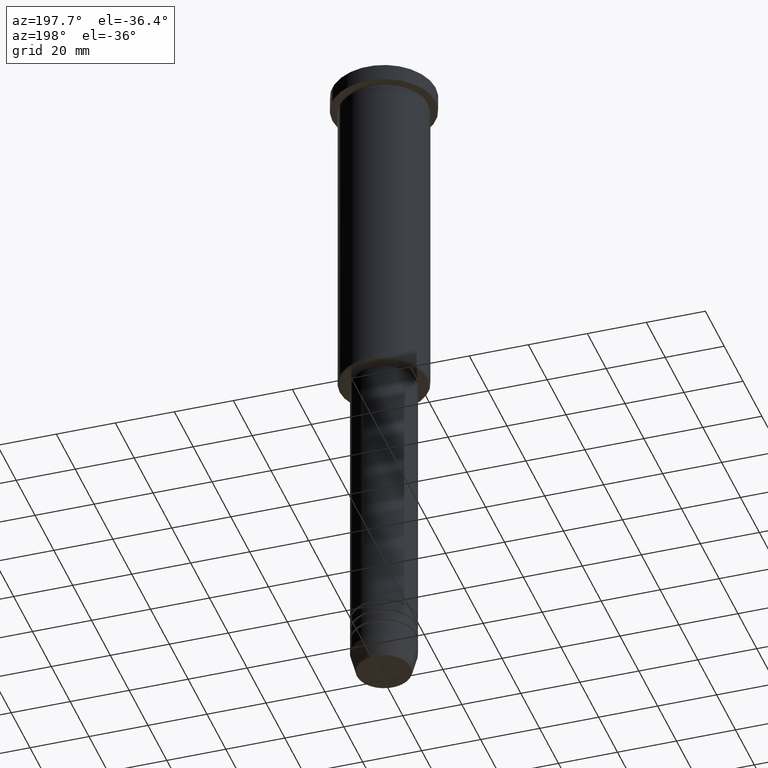
[diagram: clean part render]
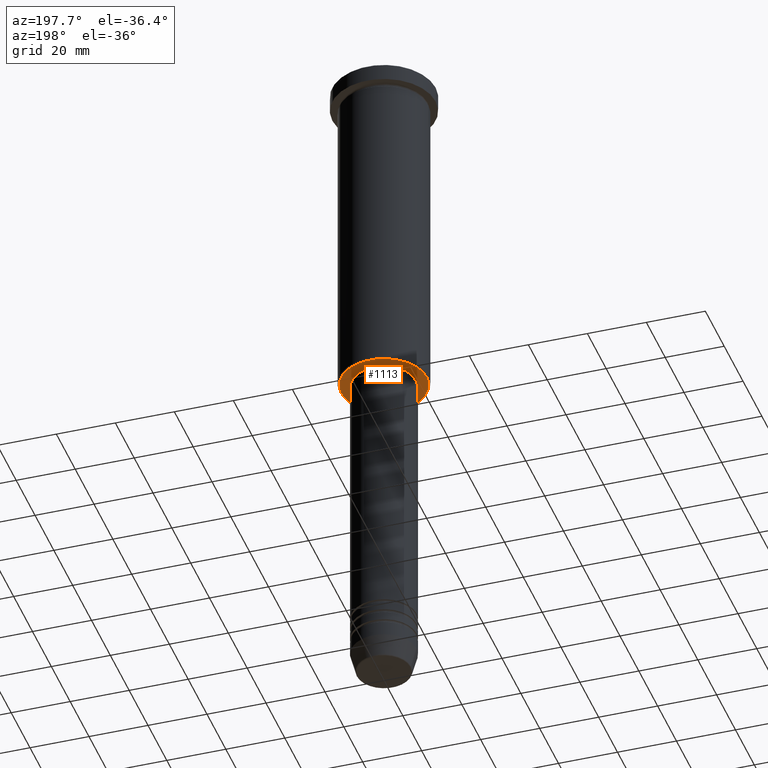
[diagram: same view with one face highlighted and labeled with its STEP entity id]
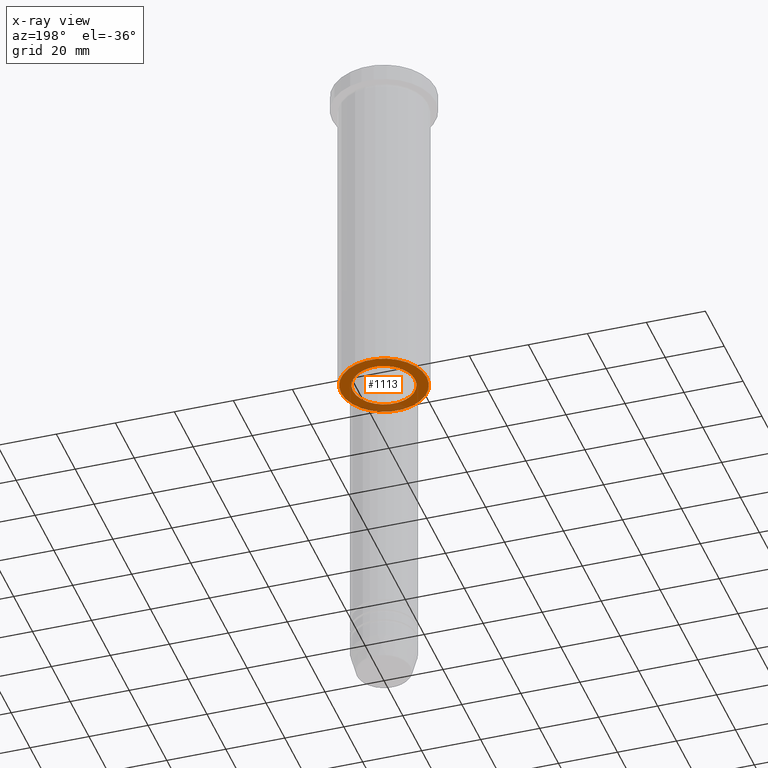
[diagram: x-ray of the same camera — body ghosted, the highlighted face saturated]
A machine part, auxiliary view. The second image highlights one B-rep face of the part: STEP entity #1113.
The next image is the same camera in x-ray: the body ghosted, the highlighted face saturated — about 15% of this face is hidden behind the body in this view.
In plain terms, the highlighted planar face has unit normal (0, 0, -1).
Its self-contained STEP definition (entity closure, byte-faithful):
#53 = DIRECTION ( 'NONE',  ( 0.000000000000000000, 0.000000000000000000, -1.000000000000000000 ) ) ;
#141 = DIRECTION ( 'NONE',  ( 0.000000000000000000, 0.000000000000000000, -1.000000000000000000 ) ) ;
#161 = DIRECTION ( 'NONE',  ( -1.000000000000000000, 0.000000000000000000, -0.000000000000000000 ) ) ;
#181 = EDGE_CURVE ( 'NONE', #292, #412, #1025, .T. ) ;
#189 = CARTESIAN_POINT ( 'NONE',  ( 14.49999999999995559, 0.000000000000000000, -116.0000000000000426 ) ) ;
#190 = EDGE_CURVE ( 'NONE', #412, #292, #1067, .T. ) ;
#225 = DIRECTION ( 'NONE',  ( -0.000000000000000000, -0.000000000000000000, 1.000000000000000000 ) ) ;
#227 = EDGE_LOOP ( 'NONE', ( #342, #645 ) ) ;
#239 = FACE_BOUND ( 'NONE', #227, .T. ) ;
#292 = VERTEX_POINT ( 'NONE', #334 ) ;
#304 = DIRECTION ( 'NONE',  ( -0.000000000000000000, -0.000000000000000000, 1.000000000000000000 ) ) ;
#306 = DIRECTION ( 'NONE',  ( -1.000000000000000000, 0.000000000000000000, 0.000000000000000000 ) ) ;
#334 = CARTESIAN_POINT ( 'NONE',  ( -14.49999999999995559, 1.806354028742343041E-15, -116.0000000000000426 ) ) ;
#342 = ORIENTED_EDGE ( 'NONE', *, *, #586, .T. ) ;
#405 = EDGE_LOOP ( 'NONE', ( #770, #889 ) ) ;
#412 = VERTEX_POINT ( 'NONE', #189 ) ;
#502 = DIRECTION ( 'NONE',  ( -1.000000000000000000, 0.000000000000000000, 0.000000000000000000 ) ) ;
#579 = CARTESIAN_POINT ( 'NONE',  ( 10.49999999999999822, 0.000000000000000000, -116.0000000000000426 ) ) ;
#586 = EDGE_CURVE ( 'NONE', #834, #940, #1047, .T. ) ;
#596 = AXIS2_PLACEMENT_3D ( 'NONE', #876, #141, #502 ) ;
#645 = ORIENTED_EDGE ( 'NONE', *, *, #974, .T. ) ;
#707 = AXIS2_PLACEMENT_3D ( 'NONE', #891, #986, #161 ) ;
#725 = FACE_OUTER_BOUND ( 'NONE', #405, .T. ) ;
#770 = ORIENTED_EDGE ( 'NONE', *, *, #190, .T. ) ;
#814 = CARTESIAN_POINT ( 'NONE',  ( 0.000000000000000000, 0.000000000000000000, -116.0000000000000426 ) ) ;
#834 = VERTEX_POINT ( 'NONE', #579 ) ;
#876 = CARTESIAN_POINT ( 'NONE',  ( 0.000000000000000000, 0.000000000000000000, -116.0000000000000426 ) ) ;
#880 = CARTESIAN_POINT ( 'NONE',  ( 0.000000000000000000, 0.000000000000000000, -116.0000000000000426 ) ) ;
#884 = CIRCLE ( 'NONE', #1012, 10.49999999999999822 ) ;
#888 = CARTESIAN_POINT ( 'NONE',  ( 0.000000000000000000, 0.000000000000000000, -116.0000000000000426 ) ) ;
#889 = ORIENTED_EDGE ( 'NONE', *, *, #181, .T. ) ;
#891 = CARTESIAN_POINT ( 'NONE',  ( 0.000000000000000000, 15.00000000000000000, -116.0000000000000426 ) ) ;
#933 = AXIS2_PLACEMENT_3D ( 'NONE', #888, #53, #306 ) ;
#940 = VERTEX_POINT ( 'NONE', #1081 ) ;
#964 = DIRECTION ( 'NONE',  ( 1.000000000000000000, 0.000000000000000000, 0.000000000000000000 ) ) ;
#974 = EDGE_CURVE ( 'NONE', #940, #834, #884, .T. ) ;
#986 = DIRECTION ( 'NONE',  ( 0.000000000000000000, 0.000000000000000000, -1.000000000000000000 ) ) ;
#992 = DIRECTION ( 'NONE',  ( 1.000000000000000000, 0.000000000000000000, 0.000000000000000000 ) ) ;
#1012 = AXIS2_PLACEMENT_3D ( 'NONE', #814, #225, #992 ) ;
#1025 = CIRCLE ( 'NONE', #596, 14.49999999999995559 ) ;
#1047 = CIRCLE ( 'NONE', #1161, 10.49999999999999822 ) ;
#1067 = CIRCLE ( 'NONE', #933, 14.49999999999995559 ) ;
#1072 = PLANE ( 'NONE',  #707 ) ;
#1081 = CARTESIAN_POINT ( 'NONE',  ( -10.49999999999999822, 1.285879139104720633E-15, -116.0000000000000426 ) ) ;
#1113 = ADVANCED_FACE ( 'NONE', ( #725, #239 ), #1072, .T. ) ;
#1161 = AXIS2_PLACEMENT_3D ( 'NONE', #880, #304, #964 ) ;